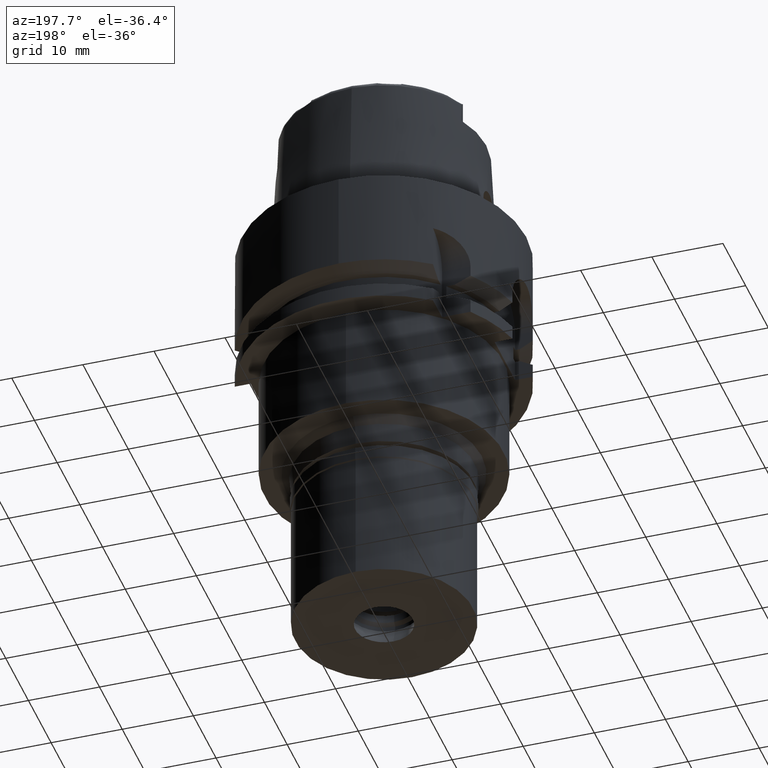
[diagram: clean part render]
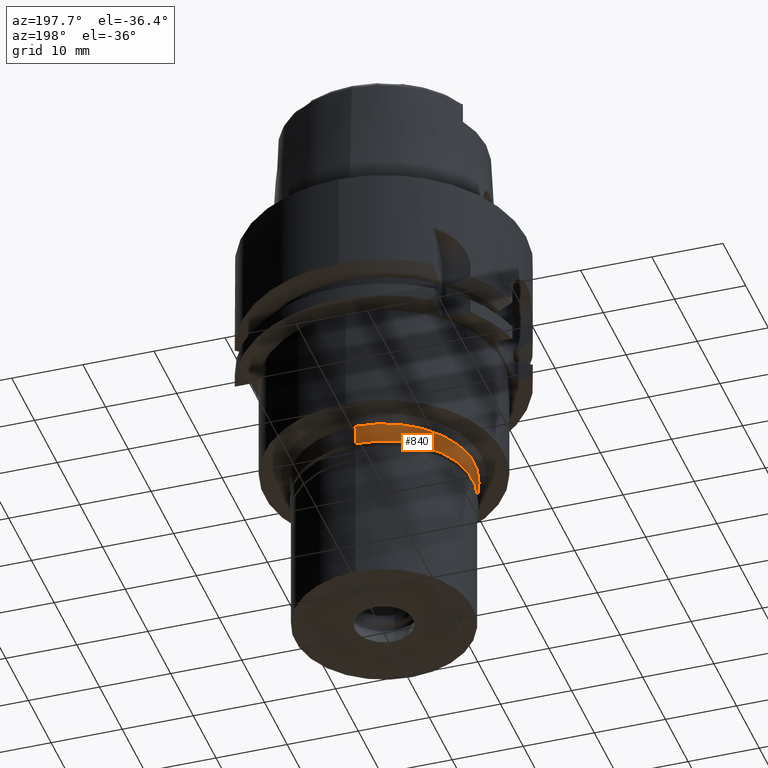
[diagram: same view with one face highlighted and labeled with its STEP entity id]
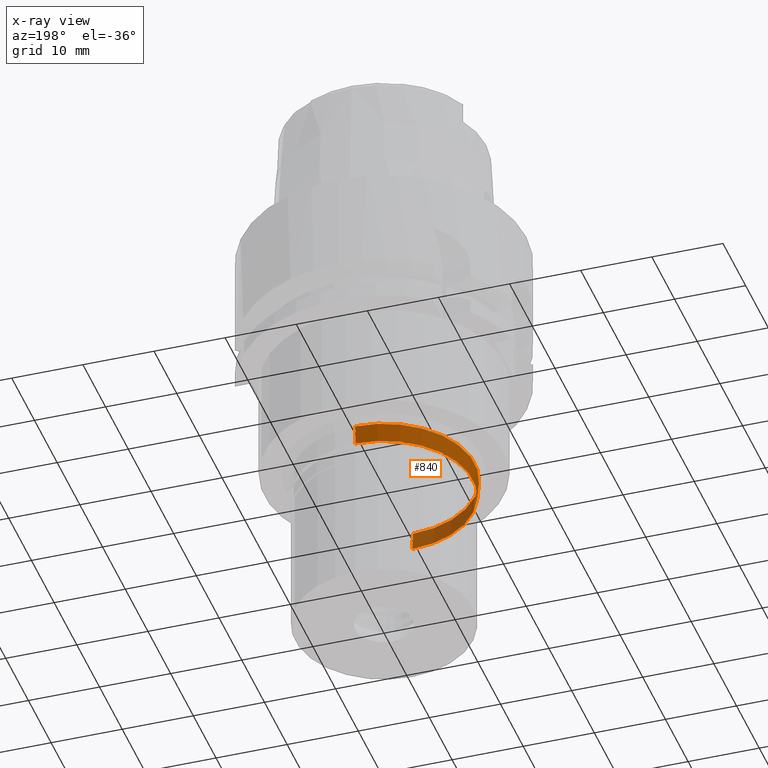
[diagram: x-ray of the same camera — body ghosted, the highlighted face saturated]
A machine part, auxiliary view. The second image highlights one B-rep face of the part: STEP entity #840.
The next image is the same camera in x-ray: the body ghosted, the highlighted face saturated — about 28% of this face is hidden behind the body in this view.
In plain terms, the highlighted conical surface has half-angle 5 deg.
Its self-contained STEP definition (entity closure, byte-faithful):
#362 = VERTEX_POINT ( 'NONE', #1335 ) ;
#596 = DIRECTION ( 'NONE',  ( 0.0000000000000000000, -0.08715574274766389740, -0.9961946980917451011 ) ) ;
#648 = AXIS2_PLACEMENT_3D ( 'NONE', #934, #1776, #5153 ) ;
#736 = VECTOR ( 'NONE', #596, 1000.000000000000114 ) ;
#752 = ORIENTED_EDGE ( 'NONE', *, *, #1527, .T. ) ;
#840 = ADVANCED_FACE ( 'NONE', ( #3694 ), #1452, .T. ) ;
#934 = CARTESIAN_POINT ( 'NONE',  ( 0.0000000000000000000, 0.0000000000000000000, -38.69999999999999574 ) ) ;
#1124 = CARTESIAN_POINT ( 'NONE',  ( 0.0000000000000000000, -12.73621939151999882, -36.00000000000000000 ) ) ;
#1288 = EDGE_CURVE ( 'NONE', #4188, #362, #1539, .T. ) ;
#1335 = CARTESIAN_POINT ( 'NONE',  ( 0.0000000000000000000, 12.73621939151999882, -36.00000000000000000 ) ) ;
#1452 = CONICAL_SURFACE ( 'NONE', #4575, 12.61810969576000119, 0.08726646259969973729 ) ;
#1527 = EDGE_CURVE ( 'NONE', #4886, #4417, #3602, .T. ) ;
#1539 = CIRCLE ( 'NONE', #2612, 12.73621939151999882 ) ;
#1552 = DIRECTION ( 'NONE',  ( 0.0000000000000000000, -1.000000000000000000, 0.0000000000000000000 ) ) ;
#1566 = DIRECTION ( 'NONE',  ( 0.0000000000000000000, 1.000000000000000000, 0.0000000000000000000 ) ) ;
#1624 = DIRECTION ( 'NONE',  ( 0.0000000000000000000, 0.08715574274766389740, -0.9961946980917451011 ) ) ;
#1745 = ORIENTED_EDGE ( 'NONE', *, *, #1288, .T. ) ;
#1776 = DIRECTION ( 'NONE',  ( 0.0000000000000000000, 0.0000000000000000000, 1.000000000000000000 ) ) ;
#1891 = CARTESIAN_POINT ( 'NONE',  ( 0.0000000000000000000, 0.0000000000000000000, -37.35000000000000142 ) ) ;
#1944 = LINE ( 'NONE', #1124, #5024 ) ;
#2039 = DIRECTION ( 'NONE',  ( 0.0000000000000000000, 0.0000000000000000000, -1.000000000000000000 ) ) ;
#2208 = CARTESIAN_POINT ( 'NONE',  ( 0.0000000000000000000, 12.50000000000000000, -38.69999999999999574 ) ) ;
#2536 = CARTESIAN_POINT ( 'NONE',  ( 0.0000000000000000000, 0.0000000000000000000, -36.00000000000000000 ) ) ;
#2612 = AXIS2_PLACEMENT_3D ( 'NONE', #2536, #2039, #1552 ) ;
#3594 = CARTESIAN_POINT ( 'NONE',  ( 0.0000000000000000000, 12.73621939151999882, -36.00000000000000000 ) ) ;
#3602 = CIRCLE ( 'NONE', #648, 12.50000000000000000 ) ;
#3694 = FACE_OUTER_BOUND ( 'NONE', #5491, .T. ) ;
#3833 = CARTESIAN_POINT ( 'NONE',  ( 0.0000000000000000000, -12.50000000000000000, -38.69999999999999574 ) ) ;
#4096 = ORIENTED_EDGE ( 'NONE', *, *, #5482, .F. ) ;
#4188 = VERTEX_POINT ( 'NONE', #5405 ) ;
#4417 = VERTEX_POINT ( 'NONE', #3833 ) ;
#4575 = AXIS2_PLACEMENT_3D ( 'NONE', #1891, #5400, #1566 ) ;
#4826 = LINE ( 'NONE', #3594, #736 ) ;
#4886 = VERTEX_POINT ( 'NONE', #2208 ) ;
#5024 = VECTOR ( 'NONE', #1624, 1000.000000000000114 ) ;
#5153 = DIRECTION ( 'NONE',  ( 0.0000000000000000000, 1.000000000000000000, 0.0000000000000000000 ) ) ;
#5208 = ORIENTED_EDGE ( 'NONE', *, *, #5418, .T. ) ;
#5400 = DIRECTION ( 'NONE',  ( 0.0000000000000000000, 0.0000000000000000000, 1.000000000000000000 ) ) ;
#5405 = CARTESIAN_POINT ( 'NONE',  ( 0.0000000000000000000, -12.73621939151999882, -36.00000000000000000 ) ) ;
#5418 = EDGE_CURVE ( 'NONE', #362, #4886, #4826, .T. ) ;
#5482 = EDGE_CURVE ( 'NONE', #4188, #4417, #1944, .T. ) ;
#5491 = EDGE_LOOP ( 'NONE', ( #752, #4096, #1745, #5208 ) ) ;